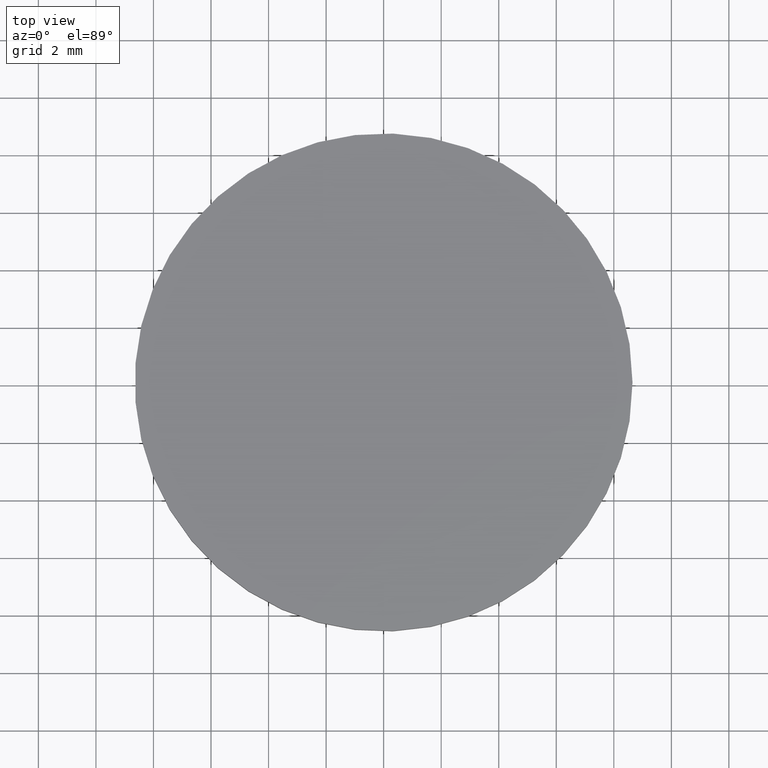
[diagram: clean part render]
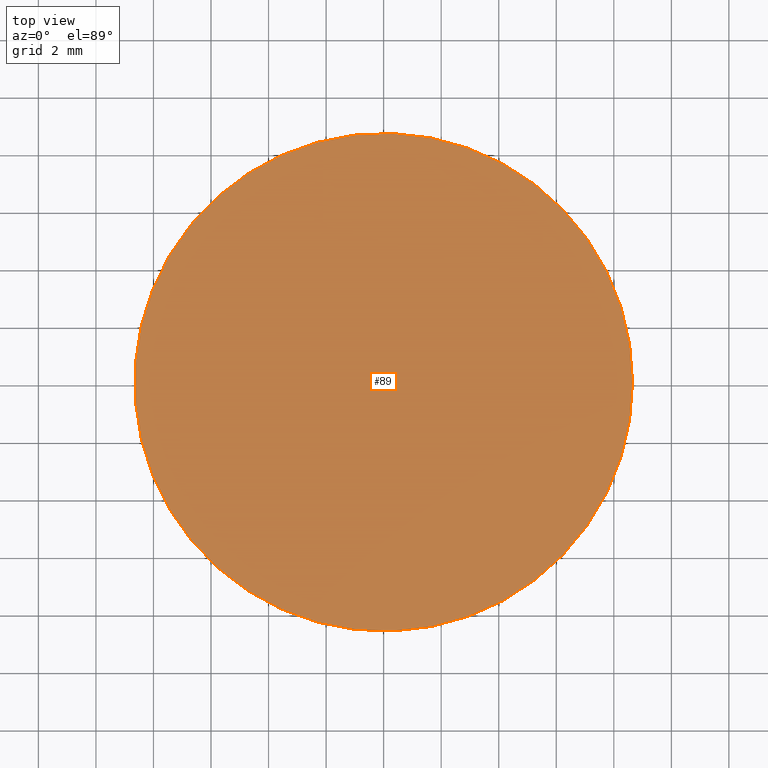
[diagram: same view with one face highlighted and labeled with its STEP entity id]
A machine part, top view. The second image highlights one B-rep face of the part: STEP entity #89.
In plain terms, the highlighted planar face has unit normal (0, 0, -1).
Its self-contained STEP definition (entity closure, byte-faithful):
#89 = ADVANCED_FACE( '', ( #130 ), #131, .F. );
#130 = FACE_OUTER_BOUND( '', #180, .T. );
#131 = PLANE( '', #181 );
#180 = EDGE_LOOP( '', ( #316 ) );
#181 = AXIS2_PLACEMENT_3D( '', #317, #318, #319 );
#316 = ORIENTED_EDGE( '', *, *, #429, .T. );
#317 = CARTESIAN_POINT( '', ( -6.12303176911189E-017, 8.65000000000002, 7.00000000000000 ) );
#318 = DIRECTION( '', ( 6.12303176911189E-017, 0.000000000000000, -1.00000000000000 ) );
#319 = DIRECTION( '', ( -1.00000000000000, 0.000000000000000, -6.12303176911189E-017 ) );
#429 = EDGE_CURVE( '', #520, #520, #521, .T. );
#520 = VERTEX_POINT( '', #646 );
#521 = CIRCLE( '', #647, 8.65000000000000 );
#646 = CARTESIAN_POINT( '', ( 8.65000000000000, 0.000000000000000, 7.00000000000000 ) );
#647 = AXIS2_PLACEMENT_3D( '', #737, #738, #739 );
#737 = CARTESIAN_POINT( '', ( -6.12303176911190E-017, 0.000000000000000, 7.00000000000000 ) );
#738 = DIRECTION( '', ( -6.12303176911189E-017, 0.000000000000000, 1.00000000000000 ) );
#739 = DIRECTION( '', ( 1.00000000000000, 0.000000000000000, 6.12303176911189E-017 ) );